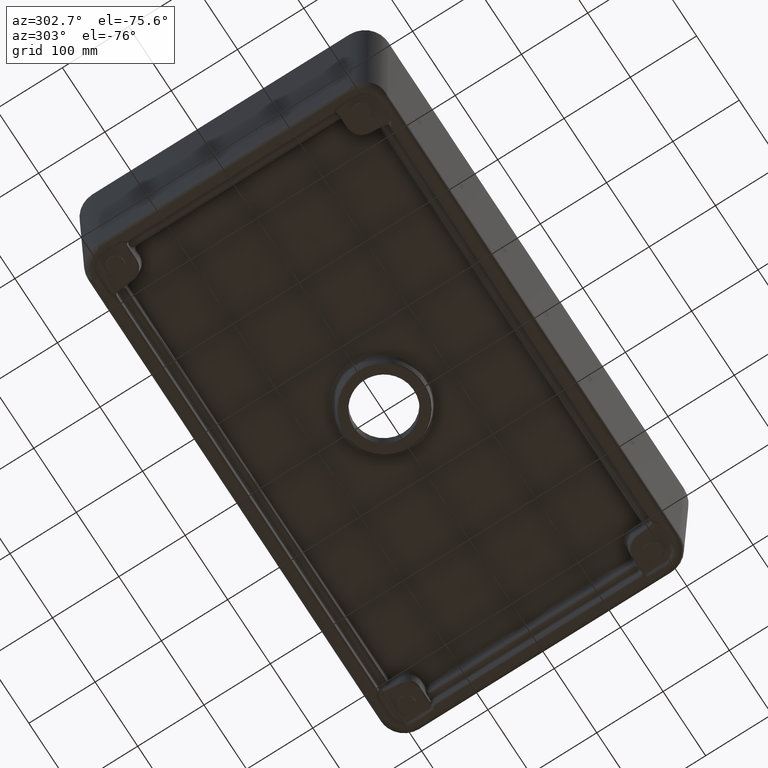
[diagram: clean part render]
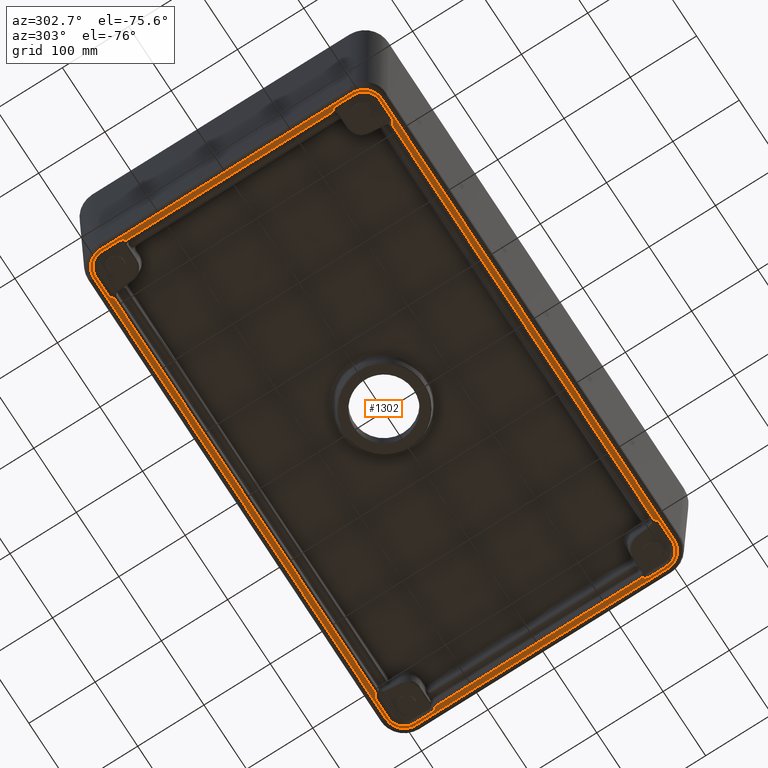
[diagram: same view with one face highlighted and labeled with its STEP entity id]
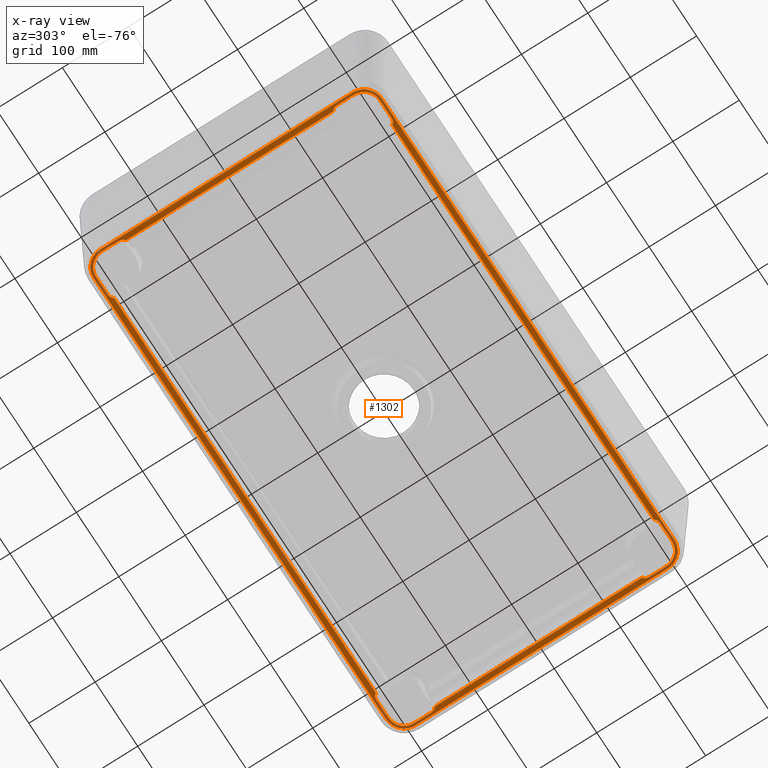
[diagram: x-ray of the same camera — body ghosted, the highlighted face saturated]
A machine part, auxiliary view. The second image highlights one B-rep face of the part: STEP entity #1302.
The next image is the same camera in x-ray: the body ghosted, the highlighted face saturated — about 0% of this face is hidden behind the body in this view.
In plain terms, the highlighted planar face has unit normal (0, 0, 1).
Its self-contained STEP definition (entity closure, byte-faithful):
#396=B_SPLINE_CURVE_WITH_KNOTS('',3,(#6875,#6876,#6877,#6878),
 .UNSPECIFIED.,.F.,.F.,(4,4),(0.,1.),.UNSPECIFIED.);
#397=B_SPLINE_CURVE_WITH_KNOTS('',3,(#6880,#6881,#6882,#6883,#6884,#6885,
#6886),.UNSPECIFIED.,.F.,.F.,(4,3,4),(0.,0.381640010981929,1.),
 .UNSPECIFIED.);
#398=B_SPLINE_CURVE_WITH_KNOTS('',3,(#6888,#6889,#6890,#6891,#6892,#6893,
#6894),.UNSPECIFIED.,.F.,.F.,(4,3,4),(0.,0.779110191904271,1.),
 .UNSPECIFIED.);
#399=B_SPLINE_CURVE_WITH_KNOTS('',3,(#6896,#6897,#6898,#6899),
 .UNSPECIFIED.,.F.,.F.,(4,4),(0.,1.),.UNSPECIFIED.);
#400=B_SPLINE_CURVE_WITH_KNOTS('',3,(#6901,#6902,#6903,#6904,#6905,#6906,
#6907,#6908,#6909,#6910,#6911,#6912,#6913,#6914,#6915,#6916,#6917,#6918),
 .UNSPECIFIED.,.F.,.F.,(4,2,2,2,2,2,2,2,4),(0.,0.249999999999995,0.312499999999995,
0.374999999999995,0.499999999999996,0.624999999999997,0.687499999999998,
0.749999999999998,1.),.UNSPECIFIED.);
#401=B_SPLINE_CURVE_WITH_KNOTS('',3,(#6920,#6921,#6922,#6923),
 .UNSPECIFIED.,.F.,.F.,(4,4),(0.,1.),.UNSPECIFIED.);
#402=B_SPLINE_CURVE_WITH_KNOTS('',3,(#6925,#6926,#6927,#6928,#6929,#6930,
#6931),.UNSPECIFIED.,.F.,.F.,(4,3,4),(0.,0.633120968215897,1.),
 .UNSPECIFIED.);
#403=B_SPLINE_CURVE_WITH_KNOTS('',3,(#6933,#6934,#6935,#6936,#6937,#6938,
#6939,#6940,#6941,#6942),.UNSPECIFIED.,.F.,.F.,(4,3,3,4),(0.,0.457853076819041,
0.791754988975363,1.),.UNSPECIFIED.);
#404=B_SPLINE_CURVE_WITH_KNOTS('',3,(#6944,#6945,#6946,#6947),
 .UNSPECIFIED.,.F.,.F.,(4,4),(0.,1.),.UNSPECIFIED.);
#405=B_SPLINE_CURVE_WITH_KNOTS('',3,(#6951,#6952,#6953,#6954),
 .UNSPECIFIED.,.F.,.F.,(4,4),(0.,1.),.UNSPECIFIED.);
#406=B_SPLINE_CURVE_WITH_KNOTS('',3,(#6956,#6957,#6958,#6959,#6960,#6961,
#6962,#6963,#6964,#6965),.UNSPECIFIED.,.F.,.F.,(4,3,3,4),(0.,0.0612235893492684,
0.385989758819238,1.),.UNSPECIFIED.);
#407=B_SPLINE_CURVE_WITH_KNOTS('',3,(#6967,#6968,#6969,#6970),
 .UNSPECIFIED.,.F.,.F.,(4,4),(0.,1.),.UNSPECIFIED.);
#408=B_SPLINE_CURVE_WITH_KNOTS('',3,(#6972,#6973,#6974,#6975),
 .UNSPECIFIED.,.F.,.F.,(4,4),(0.,1.),.UNSPECIFIED.);
#409=B_SPLINE_CURVE_WITH_KNOTS('',3,(#6977,#6978,#6979,#6980,#6981,#6982,
#6983,#6984,#6985,#6986,#6987,#6988,#6989,#6990,#6991,#6992,#6993,#6994),
 .UNSPECIFIED.,.F.,.F.,(4,2,2,2,2,2,2,2,4),(0.,0.249999999999996,0.312499999999995,
0.374999999999994,0.499999999999993,0.624999999999992,0.687499999999992,
0.749999999999993,1.),.UNSPECIFIED.);
#410=B_SPLINE_CURVE_WITH_KNOTS('',3,(#6996,#6997,#6998,#6999),
 .UNSPECIFIED.,.F.,.F.,(4,4),(0.,1.),.UNSPECIFIED.);
#411=B_SPLINE_CURVE_WITH_KNOTS('',3,(#7001,#7002,#7003,#7004),
 .UNSPECIFIED.,.F.,.F.,(4,4),(0.,1.),.UNSPECIFIED.);
#412=B_SPLINE_CURVE_WITH_KNOTS('',3,(#7006,#7007,#7008,#7009,#7010,#7011,
#7012,#7013,#7014,#7015),.UNSPECIFIED.,.F.,.F.,(4,3,3,4),(0.,0.637214308742445,
0.934135097132721,1.),.UNSPECIFIED.);
#413=B_SPLINE_CURVE_WITH_KNOTS('',3,(#7017,#7018,#7019,#7020),
 .UNSPECIFIED.,.F.,.F.,(4,4),(0.,1.),.UNSPECIFIED.);
#414=B_SPLINE_CURVE_WITH_KNOTS('',3,(#7024,#7025,#7026,#7027),
 .UNSPECIFIED.,.F.,.F.,(4,4),(0.,1.),.UNSPECIFIED.);
#415=B_SPLINE_CURVE_WITH_KNOTS('',3,(#7029,#7030,#7031,#7032,#7033,#7034,
#7035,#7036,#7037,#7038),.UNSPECIFIED.,.F.,.F.,(4,3,3,4),(0.,0.637214308742445,
0.934135097132721,1.),.UNSPECIFIED.);
#416=B_SPLINE_CURVE_WITH_KNOTS('',3,(#7040,#7041,#7042,#7043),
 .UNSPECIFIED.,.F.,.F.,(4,4),(0.,1.),.UNSPECIFIED.);
#417=B_SPLINE_CURVE_WITH_KNOTS('',3,(#7045,#7046,#7047,#7048),
 .UNSPECIFIED.,.F.,.F.,(4,4),(0.,1.),.UNSPECIFIED.);
#418=B_SPLINE_CURVE_WITH_KNOTS('',3,(#7050,#7051,#7052,#7053,#7054,#7055,
#7056,#7057,#7058,#7059,#7060,#7061,#7062,#7063,#7064,#7065,#7066,#7067),
 .UNSPECIFIED.,.F.,.F.,(4,2,2,2,2,2,2,2,4),(0.,0.249999999999996,0.312499999999995,
0.374999999999994,0.499999999999993,0.624999999999992,0.687499999999992,
0.749999999999993,1.),.UNSPECIFIED.);
#419=B_SPLINE_CURVE_WITH_KNOTS('',3,(#7069,#7070,#7071,#7072),
 .UNSPECIFIED.,.F.,.F.,(4,4),(0.,1.),.UNSPECIFIED.);
#420=B_SPLINE_CURVE_WITH_KNOTS('',3,(#7074,#7075,#7076,#7077),
 .UNSPECIFIED.,.F.,.F.,(4,4),(0.,1.),.UNSPECIFIED.);
#421=B_SPLINE_CURVE_WITH_KNOTS('',3,(#7079,#7080,#7081,#7082,#7083,#7084,
#7085,#7086,#7087,#7088),.UNSPECIFIED.,.F.,.F.,(4,3,3,4),(0.,0.061223589349268,
0.385989758819238,1.),.UNSPECIFIED.);
#422=B_SPLINE_CURVE_WITH_KNOTS('',3,(#7090,#7091,#7092,#7093),
 .UNSPECIFIED.,.F.,.F.,(4,4),(0.,1.),.UNSPECIFIED.);
#423=B_SPLINE_CURVE_WITH_KNOTS('',3,(#7097,#7098,#7099,#7100),
 .UNSPECIFIED.,.F.,.F.,(4,4),(0.,1.),.UNSPECIFIED.);
#424=B_SPLINE_CURVE_WITH_KNOTS('',3,(#7102,#7103,#7104,#7105,#7106,#7107,
#7108,#7109,#7110,#7111),.UNSPECIFIED.,.F.,.F.,(4,3,3,4),(0.,0.457853076819041,
0.791754988975362,1.),.UNSPECIFIED.);
#425=B_SPLINE_CURVE_WITH_KNOTS('',3,(#7113,#7114,#7115,#7116,#7117,#7118,
#7119),.UNSPECIFIED.,.F.,.F.,(4,3,4),(0.,0.633120968215898,1.),
 .UNSPECIFIED.);
#426=B_SPLINE_CURVE_WITH_KNOTS('',3,(#7121,#7122,#7123,#7124),
 .UNSPECIFIED.,.F.,.F.,(4,4),(0.,1.),.UNSPECIFIED.);
#427=B_SPLINE_CURVE_WITH_KNOTS('',3,(#7126,#7127,#7128,#7129,#7130,#7131,
#7132,#7133,#7134,#7135,#7136,#7137,#7138,#7139,#7140,#7141,#7142,#7143),
 .UNSPECIFIED.,.F.,.F.,(4,2,2,2,2,2,2,2,4),(0.,0.249999999999995,0.312499999999995,
0.374999999999995,0.499999999999996,0.624999999999997,0.687499999999998,
0.749999999999998,1.),.UNSPECIFIED.);
#428=B_SPLINE_CURVE_WITH_KNOTS('',3,(#7145,#7146,#7147,#7148),
 .UNSPECIFIED.,.F.,.F.,(4,4),(0.,1.),.UNSPECIFIED.);
#429=B_SPLINE_CURVE_WITH_KNOTS('',3,(#7150,#7151,#7152,#7153,#7154,#7155,
#7156),.UNSPECIFIED.,.F.,.F.,(4,3,4),(0.,0.779110191904271,1.),
 .UNSPECIFIED.);
#430=B_SPLINE_CURVE_WITH_KNOTS('',3,(#7158,#7159,#7160,#7161,#7162,#7163,
#7164),.UNSPECIFIED.,.F.,.F.,(4,3,4),(0.,0.381640010981929,1.),
 .UNSPECIFIED.);
#431=B_SPLINE_CURVE_WITH_KNOTS('',3,(#7166,#7167,#7168,#7169),
 .UNSPECIFIED.,.F.,.F.,(4,4),(0.,1.),.UNSPECIFIED.);
#980=FACE_BOUND('',#2016,.T.);
#981=FACE_BOUND('',#2017,.T.);
#1006=ELLIPSE('',#5809,27.1439448121189,27.1356783919598);
#1007=ELLIPSE('',#5810,27.1439448121189,27.1356783919598);
#1008=ELLIPSE('',#5811,27.1439448121189,27.1356783919598);
#1009=ELLIPSE('',#5812,27.1439448121189,27.1356783919598);
#1302=ADVANCED_FACE('',(#980,#981),#1651,.F.);
#1651=PLANE('',#5813);
#2016=EDGE_LOOP('',(#2392,#2393,#2394,#2395,#2396,#2397,#2398,#2399));
#2017=EDGE_LOOP('',(#2400,#2401,#2402,#2403,#2404,#2405,#2406,#2407,#2408,
#2409,#2410,#2411,#2412,#2413,#2414,#2415,#2416,#2417,#2418,#2419,#2420,
#2421,#2422,#2423,#2424,#2425,#2426,#2427,#2428,#2429,#2430,#2431,#2432,
#2433,#2434,#2435,#2436,#2437,#2438,#2439));
#2392=ORIENTED_EDGE('',*,*,#4771,.T.);
#2393=ORIENTED_EDGE('',*,*,#4776,.F.);
#2394=ORIENTED_EDGE('',*,*,#4777,.F.);
#2395=ORIENTED_EDGE('',*,*,#4778,.F.);
#2396=ORIENTED_EDGE('',*,*,#4773,.T.);
#2397=ORIENTED_EDGE('',*,*,#4779,.T.);
#2398=ORIENTED_EDGE('',*,*,#4780,.T.);
#2399=ORIENTED_EDGE('',*,*,#4781,.T.);
#2400=ORIENTED_EDGE('',*,*,#4782,.T.);
#2401=ORIENTED_EDGE('',*,*,#4783,.F.);
#2402=ORIENTED_EDGE('',*,*,#4784,.F.);
#2403=ORIENTED_EDGE('',*,*,#4785,.F.);
#2404=ORIENTED_EDGE('',*,*,#4786,.F.);
#2405=ORIENTED_EDGE('',*,*,#4787,.F.);
#2406=ORIENTED_EDGE('',*,*,#4788,.F.);
#2407=ORIENTED_EDGE('',*,*,#4789,.F.);
#2408=ORIENTED_EDGE('',*,*,#4790,.F.);
#2409=ORIENTED_EDGE('',*,*,#4791,.F.);
#2410=ORIENTED_EDGE('',*,*,#4792,.F.);
#2411=ORIENTED_EDGE('',*,*,#4793,.F.);
#2412=ORIENTED_EDGE('',*,*,#4794,.F.);
#2413=ORIENTED_EDGE('',*,*,#4795,.F.);
#2414=ORIENTED_EDGE('',*,*,#4796,.F.);
#2415=ORIENTED_EDGE('',*,*,#4797,.F.);
#2416=ORIENTED_EDGE('',*,*,#4798,.F.);
#2417=ORIENTED_EDGE('',*,*,#4799,.F.);
#2418=ORIENTED_EDGE('',*,*,#4800,.F.);
#2419=ORIENTED_EDGE('',*,*,#4801,.F.);
#2420=ORIENTED_EDGE('',*,*,#4802,.T.);
#2421=ORIENTED_EDGE('',*,*,#4803,.T.);
#2422=ORIENTED_EDGE('',*,*,#4804,.T.);
#2423=ORIENTED_EDGE('',*,*,#4805,.T.);
#2424=ORIENTED_EDGE('',*,*,#4806,.T.);
#2425=ORIENTED_EDGE('',*,*,#4807,.T.);
#2426=ORIENTED_EDGE('',*,*,#4808,.T.);
#2427=ORIENTED_EDGE('',*,*,#4809,.T.);
#2428=ORIENTED_EDGE('',*,*,#4810,.T.);
#2429=ORIENTED_EDGE('',*,*,#4811,.T.);
#2430=ORIENTED_EDGE('',*,*,#4812,.T.);
#2431=ORIENTED_EDGE('',*,*,#4813,.T.);
#2432=ORIENTED_EDGE('',*,*,#4814,.T.);
#2433=ORIENTED_EDGE('',*,*,#4815,.T.);
#2434=ORIENTED_EDGE('',*,*,#4816,.T.);
#2435=ORIENTED_EDGE('',*,*,#4817,.T.);
#2436=ORIENTED_EDGE('',*,*,#4818,.T.);
#2437=ORIENTED_EDGE('',*,*,#4819,.T.);
#2438=ORIENTED_EDGE('',*,*,#4820,.T.);
#2439=ORIENTED_EDGE('',*,*,#4821,.T.);
#4200=VERTEX_POINT('',#6851);
#4201=VERTEX_POINT('',#6853);
#4202=VERTEX_POINT('',#6857);
#4203=VERTEX_POINT('',#6858);
#4204=VERTEX_POINT('',#6863);
#4205=VERTEX_POINT('',#6865);
#4206=VERTEX_POINT('',#6868);
#4207=VERTEX_POINT('',#6870);
#4208=VERTEX_POINT('',#6873);
#4209=VERTEX_POINT('',#6874);
#4210=VERTEX_POINT('',#6879);
#4211=VERTEX_POINT('',#6887);
#4212=VERTEX_POINT('',#6895);
#4213=VERTEX_POINT('',#6900);
#4214=VERTEX_POINT('',#6919);
#4215=VERTEX_POINT('',#6924);
#4216=VERTEX_POINT('',#6932);
#4217=VERTEX_POINT('',#6943);
#4218=VERTEX_POINT('',#6948);
#4219=VERTEX_POINT('',#6950);
#4220=VERTEX_POINT('',#6955);
#4221=VERTEX_POINT('',#6966);
#4222=VERTEX_POINT('',#6971);
#4223=VERTEX_POINT('',#6976);
#4224=VERTEX_POINT('',#6995);
#4225=VERTEX_POINT('',#7000);
#4226=VERTEX_POINT('',#7005);
#4227=VERTEX_POINT('',#7016);
#4228=VERTEX_POINT('',#7021);
#4229=VERTEX_POINT('',#7023);
#4230=VERTEX_POINT('',#7028);
#4231=VERTEX_POINT('',#7039);
#4232=VERTEX_POINT('',#7044);
#4233=VERTEX_POINT('',#7049);
#4234=VERTEX_POINT('',#7068);
#4235=VERTEX_POINT('',#7073);
#4236=VERTEX_POINT('',#7078);
#4237=VERTEX_POINT('',#7089);
#4238=VERTEX_POINT('',#7094);
#4239=VERTEX_POINT('',#7096);
#4240=VERTEX_POINT('',#7101);
#4241=VERTEX_POINT('',#7112);
#4242=VERTEX_POINT('',#7120);
#4243=VERTEX_POINT('',#7125);
#4244=VERTEX_POINT('',#7144);
#4245=VERTEX_POINT('',#7149);
#4246=VERTEX_POINT('',#7157);
#4247=VERTEX_POINT('',#7165);
#4771=EDGE_CURVE('',#4201,#4200,#5678,.T.);
#4773=EDGE_CURVE('',#4202,#4203,#5679,.T.);
#4776=EDGE_CURVE('',#4204,#4200,#1006,.T.);
#4777=EDGE_CURVE('',#4205,#4204,#5680,.T.);
#4778=EDGE_CURVE('',#4202,#4205,#1007,.T.);
#4779=EDGE_CURVE('',#4203,#4206,#1008,.T.);
#4780=EDGE_CURVE('',#4206,#4207,#5681,.T.);
#4781=EDGE_CURVE('',#4207,#4201,#1009,.T.);
#4782=EDGE_CURVE('',#4208,#4209,#5682,.T.);
#4783=EDGE_CURVE('',#4210,#4209,#396,.T.);
#4784=EDGE_CURVE('',#4211,#4210,#397,.T.);
#4785=EDGE_CURVE('',#4212,#4211,#398,.T.);
#4786=EDGE_CURVE('',#4213,#4212,#399,.T.);
#4787=EDGE_CURVE('',#4214,#4213,#400,.T.);
#4788=EDGE_CURVE('',#4215,#4214,#401,.T.);
#4789=EDGE_CURVE('',#4216,#4215,#402,.T.);
#4790=EDGE_CURVE('',#4217,#4216,#403,.T.);
#4791=EDGE_CURVE('',#4218,#4217,#404,.T.);
#4792=EDGE_CURVE('',#4219,#4218,#5683,.T.);
#4793=EDGE_CURVE('',#4220,#4219,#405,.T.);
#4794=EDGE_CURVE('',#4221,#4220,#406,.T.);
#4795=EDGE_CURVE('',#4222,#4221,#407,.T.);
#4796=EDGE_CURVE('',#4223,#4222,#408,.T.);
#4797=EDGE_CURVE('',#4224,#4223,#409,.T.);
#4798=EDGE_CURVE('',#4225,#4224,#410,.T.);
#4799=EDGE_CURVE('',#4226,#4225,#411,.T.);
#4800=EDGE_CURVE('',#4227,#4226,#412,.T.);
#4801=EDGE_CURVE('',#4228,#4227,#413,.T.);
#4802=EDGE_CURVE('',#4228,#4229,#5684,.T.);
#4803=EDGE_CURVE('',#4229,#4230,#414,.T.);
#4804=EDGE_CURVE('',#4230,#4231,#415,.T.);
#4805=EDGE_CURVE('',#4231,#4232,#416,.T.);
#4806=EDGE_CURVE('',#4232,#4233,#417,.T.);
#4807=EDGE_CURVE('',#4233,#4234,#418,.T.);
#4808=EDGE_CURVE('',#4234,#4235,#419,.T.);
#4809=EDGE_CURVE('',#4235,#4236,#420,.T.);
#4810=EDGE_CURVE('',#4236,#4237,#421,.T.);
#4811=EDGE_CURVE('',#4237,#4238,#422,.T.);
#4812=EDGE_CURVE('',#4238,#4239,#5685,.T.);
#4813=EDGE_CURVE('',#4239,#4240,#423,.T.);
#4814=EDGE_CURVE('',#4240,#4241,#424,.T.);
#4815=EDGE_CURVE('',#4241,#4242,#425,.T.);
#4816=EDGE_CURVE('',#4242,#4243,#426,.T.);
#4817=EDGE_CURVE('',#4243,#4244,#427,.T.);
#4818=EDGE_CURVE('',#4244,#4245,#428,.T.);
#4819=EDGE_CURVE('',#4245,#4246,#429,.T.);
#4820=EDGE_CURVE('',#4246,#4247,#430,.T.);
#4821=EDGE_CURVE('',#4247,#4208,#431,.T.);
#5678=LINE('',#6852,#5743);
#5679=LINE('',#6856,#5744);
#5680=LINE('',#6864,#5745);
#5681=LINE('',#6869,#5746);
#5682=LINE('',#6872,#5747);
#5683=LINE('',#6949,#5748);
#5684=LINE('',#7022,#5749);
#5685=LINE('',#7095,#5750);
#5743=VECTOR('',#6138,1.);
#5744=VECTOR('',#6143,1.);
#5745=VECTOR('',#6152,1.);
#5746=VECTOR('',#6157,1.);
#5747=VECTOR('',#6160,1.);
#5748=VECTOR('',#6161,1.);
#5749=VECTOR('',#6162,1.);
#5750=VECTOR('',#6163,1.);
#5809=AXIS2_PLACEMENT_3D('',#6862,#6150,#6151);
#5810=AXIS2_PLACEMENT_3D('',#6866,#6153,#6154);
#5811=AXIS2_PLACEMENT_3D('',#6867,#6155,#6156);
#5812=AXIS2_PLACEMENT_3D('',#6871,#6158,#6159);
#5813=AXIS2_PLACEMENT_3D('',#7170,#6164,#6165);
#6138=DIRECTION('',(0.,-1.,0.));
#6143=DIRECTION('',(0.,1.,0.));
#6150=DIRECTION('',(0.,0.,1.));
#6151=DIRECTION('',(0.707106781186548,-0.707106781186548,0.));
#6152=DIRECTION('',(1.,0.,0.));
#6153=DIRECTION('',(0.,0.,1.));
#6154=DIRECTION('',(-0.707106781186548,-0.707106781186548,0.));
#6155=DIRECTION('',(0.,0.,-1.));
#6156=DIRECTION('',(-0.707106781186548,0.707106781186548,0.));
#6157=DIRECTION('',(1.,0.,0.));
#6158=DIRECTION('',(0.,0.,-1.));
#6159=DIRECTION('',(0.707106781186548,0.707106781186548,0.));
#6160=DIRECTION('',(1.10930001209168E-015,-1.,0.));
#6161=DIRECTION('',(-1.,0.,0.));
#6162=DIRECTION('',(3.46656253778651E-017,1.,0.));
#6163=DIRECTION('',(-1.,0.,0.));
#6164=DIRECTION('',(0.,0.,1.));
#6165=DIRECTION('',(-1.,0.,0.));
#6851=CARTESIAN_POINT('',(370.557623520912,-190.260248878477,-38.9249710355113));
#6852=CARTESIAN_POINT('',(370.557623520912,-190.122355957547,-38.9249710355113));
#6853=CARTESIAN_POINT('',(370.557623520912,190.260248878477,-38.9249710355113));
#6856=CARTESIAN_POINT('',(-370.557623520912,190.122355957547,-38.9249710355113));
#6857=CARTESIAN_POINT('',(-370.557623520912,-190.260248878477,-38.9249710355113));
#6858=CARTESIAN_POINT('',(-370.557623520912,190.260248878477,-38.9249710355113));
#6862=CARTESIAN_POINT('',(343.417811604142,-190.251982458414,-38.9249710355112));
#6863=CARTESIAN_POINT('',(343.426078024206,-217.391794375183,-38.9249710355113));
#6864=CARTESIAN_POINT('',(343.288185103275,-217.391794375183,-38.9249710355113));
#6865=CARTESIAN_POINT('',(-343.426078024206,-217.391794375183,-38.9249710355113));
#6866=CARTESIAN_POINT('',(-343.417811604142,-190.251982458414,-38.9249710355112));
#6867=CARTESIAN_POINT('',(-343.417811604142,190.251982458414,-38.9249710355112));
#6868=CARTESIAN_POINT('',(-343.426078024206,217.391794375183,-38.9249710355113));
#6869=CARTESIAN_POINT('',(343.288185103275,217.391794375183,-38.9249710355113));
#6870=CARTESIAN_POINT('',(343.426078024206,217.391794375183,-38.9249710355113));
#6871=CARTESIAN_POINT('',(343.417811604142,190.251982458414,-38.9249710355112));
#6872=CARTESIAN_POINT('',(-363.066168233185,-155.43502953761,-38.9249710355113));
#6873=CARTESIAN_POINT('',(-363.066168233185,154.900490997449,-38.9249710355113));
#6874=CARTESIAN_POINT('',(-363.066168233185,-154.900490997449,-38.9249710355113));
#6875=CARTESIAN_POINT('',(-363.1846975913,-155.671191566404,-38.9249710355113));
#6876=CARTESIAN_POINT('',(-363.10671135873,-155.423246253552,-38.9249710355113));
#6877=CARTESIAN_POINT('',(-363.066168233185,-155.16041162117,-38.9249710355113));
#6878=CARTESIAN_POINT('',(-363.066168233185,-154.900490997449,-38.9249710355113));
#6879=CARTESIAN_POINT('',(-363.1846975913,-155.671191566404,-38.9249710355113));
#6880=CARTESIAN_POINT('',(-363.586157042633,-156.694139198891,-38.9249710355113));
#6881=CARTESIAN_POINT('',(-363.501529292025,-156.58284976847,-38.9249710355113));
#6882=CARTESIAN_POINT('',(-363.45165565011,-156.44803323705,-38.9249710355113));
#6883=CARTESIAN_POINT('',(-363.401617872742,-156.317482808738,-38.9249710355113));
#6884=CARTESIAN_POINT('',(-363.320289376231,-156.105293726571,-38.9249710355113));
#6885=CARTESIAN_POINT('',(-363.252878712601,-155.887963025857,-38.9249710355113));
#6886=CARTESIAN_POINT('',(-363.1846975913,-155.671191566404,-38.9249710355113));
#6887=CARTESIAN_POINT('',(-363.586157042633,-156.694139198891,-38.9249710355113));
#6888=CARTESIAN_POINT('',(-364.033419782479,-157.160045070747,-38.9249710355113));
#6889=CARTESIAN_POINT('',(-363.904080419004,-157.053171594618,-38.9249710355113));
#6890=CARTESIAN_POINT('',(-363.783920072641,-156.934149144474,-38.9249710355113));
#6891=CARTESIAN_POINT('',(-363.675719783307,-156.80591768097,-38.9249710355113));
#6892=CARTESIAN_POINT('',(-363.644929854392,-156.769427596975,-38.9249710355113));
#6893=CARTESIAN_POINT('',(-363.615056837975,-156.732143774692,-38.9249710355113));
#6894=CARTESIAN_POINT('',(-363.586157042633,-156.694139198891,-38.9249710355113));
#6895=CARTESIAN_POINT('',(-364.033419782479,-157.160045070747,-38.9249710355113));
#6896=CARTESIAN_POINT('',(-367.275784585555,-164.04901139435,-38.9249710355113));
#6897=CARTESIAN_POINT('',(-367.275785478975,-161.405861538318,-38.9249710355113));
#6898=CARTESIAN_POINT('',(-366.071021455255,-158.843721005779,-38.9249710355113));
#6899=CARTESIAN_POINT('',(-364.033419782479,-157.160045070747,-38.9249710355113));
#6900=CARTESIAN_POINT('',(-367.275784585555,-164.04901139435,-38.9249710355113));
#6901=CARTESIAN_POINT('',(-315.124508112416,-214.109957470588,-38.9249710355113));
#6902=CARTESIAN_POINT('',(-322.7095148196,-214.109954539535,-38.9249710355113));
#6903=CARTESIAN_POINT('',(-330.294598787995,-214.113315692453,-38.9249710355113));
#6904=CARTESIAN_POINT('',(-339.77556476338,-214.100580063081,-38.9249710355113));
#6905=CARTESIAN_POINT('',(-341.671976795916,-214.107561490878,-38.9249710355113));
#6906=CARTESIAN_POINT('',(-345.464503472545,-214.108575549882,-38.9249710355113));
#6907=CARTESIAN_POINT('',(-347.371122570532,-213.848739409289,-38.9249710355113));
#6908=CARTESIAN_POINT('',(-352.96735275476,-212.405068340496,-38.9249710355113));
#6909=CARTESIAN_POINT('',(-356.438570979766,-210.547544997536,-38.9249710355113));
#6910=CARTESIAN_POINT('',(-362.128713088513,-205.47308614114,-38.9249710355113));
#6911=CARTESIAN_POINT('',(-364.351528879016,-202.222465231722,-38.9249710355113));
#6912=CARTESIAN_POINT('',(-366.407833750265,-196.816714077835,-38.9249710355113));
#6913=CARTESIAN_POINT('',(-366.873491351789,-194.949065427098,-38.9249710355113));
#6914=CARTESIAN_POINT('',(-367.338194998888,-191.158898021872,-38.9249710355113));
#6915=CARTESIAN_POINT('',(-367.268744298041,-189.212402916788,-38.9249710355113));
#6916=CARTESIAN_POINT('',(-367.283753077819,-179.53417661485,-38.9249710355113));
#6917=CARTESIAN_POINT('',(-367.275781968457,-171.7915936135,-38.9249710355113));
#6918=CARTESIAN_POINT('',(-367.275784585555,-164.04901139435,-38.9249710355113));
#6919=CARTESIAN_POINT('',(-315.124508112416,-214.109957470588,-38.9249710355113));
#6920=CARTESIAN_POINT('',(-308.234732070418,-210.863897440515,-38.9249710355113));
#6921=CARTESIAN_POINT('',(-309.917608091989,-212.903427565152,-38.9249710355113));
#6922=CARTESIAN_POINT('',(-312.480357104722,-214.10995849236,-38.9249710355113));
#6923=CARTESIAN_POINT('',(-315.124508112416,-214.109957470588,-38.9249710355113));
#6924=CARTESIAN_POINT('',(-308.234732070418,-210.863897440514,-38.9249710355113));
#6925=CARTESIAN_POINT('',(-307.852519889821,-210.482573502364,-38.9249710355113));
#6926=CARTESIAN_POINT('',(-307.940611569403,-210.554953141965,-38.9249710355113));
#6927=CARTESIAN_POINT('',(-308.024445548226,-210.632849189387,-38.9249710355113));
#6928=CARTESIAN_POINT('',(-308.103069586763,-210.715415628116,-38.9249710355113));
#6929=CARTESIAN_POINT('',(-308.148686716345,-210.763320111336,-38.9249710355113));
#6930=CARTESIAN_POINT('',(-308.192631704146,-210.812874688886,-38.9249710355113));
#6931=CARTESIAN_POINT('',(-308.234732070418,-210.863897440514,-38.9249710355113));
#6932=CARTESIAN_POINT('',(-307.852519889821,-210.482573502364,-38.9249710355113));
#6933=CARTESIAN_POINT('',(-306.841639597909,-210.045615034379,-38.9249710355113));
#6934=CARTESIAN_POINT('',(-307.000731019468,-210.101538049265,-38.9249710355113));
#6935=CARTESIAN_POINT('',(-307.159836892276,-210.157578611039,-38.9249710355113));
#6936=CARTESIAN_POINT('',(-307.317123808524,-210.218392178478,-38.9249710355113));
#6937=CARTESIAN_POINT('',(-307.431774816997,-210.262720956752,-38.9249710355113));
#6938=CARTESIAN_POINT('',(-307.545842829983,-210.309308976052,-38.9249710355113));
#6939=CARTESIAN_POINT('',(-307.655917297216,-210.364021917761,-38.9249710355113));
#6940=CARTESIAN_POINT('',(-307.724445447598,-210.398084101221,-38.9249710355113));
#6941=CARTESIAN_POINT('',(-307.793391809249,-210.43399151162,-38.9249710355113));
#6942=CARTESIAN_POINT('',(-307.852519889821,-210.482573502364,-38.9249710355113));
#6943=CARTESIAN_POINT('',(-306.841639597909,-210.045615034379,-38.9249710355113));
#6944=CARTESIAN_POINT('',(-305.991646598121,-209.900339087456,-38.9249710355113));
#6945=CARTESIAN_POINT('',(-306.279086099088,-209.900339087456,-38.9249710355113));
#6946=CARTESIAN_POINT('',(-306.570465764481,-209.950293374827,-38.9249710355113));
#6947=CARTESIAN_POINT('',(-306.841639597909,-210.045615034379,-38.9249710355113));
#6948=CARTESIAN_POINT('',(-305.991646598121,-209.900339087456,-38.9249710355113));
#6949=CARTESIAN_POINT('',(-306.494864110458,-209.900339087456,-38.9249710355113));
#6950=CARTESIAN_POINT('',(305.747874658885,-209.900339087456,-38.9249710355113));
#6951=CARTESIAN_POINT('',(306.766260736348,-210.073945156835,-38.9249710355113));
#6952=CARTESIAN_POINT('',(306.441289667339,-209.960028272485,-38.9249710355113));
#6953=CARTESIAN_POINT('',(306.092233849605,-209.900339087456,-38.9249710355113));
#6954=CARTESIAN_POINT('',(305.747874658885,-209.900339087456,-38.9249710355113));
#6955=CARTESIAN_POINT('',(306.766260736348,-210.073945156835,-38.9249710355113));
#6956=CARTESIAN_POINT('',(307.885556100203,-210.55648328172,-38.9249710355113));
#6957=CARTESIAN_POINT('',(307.865873051657,-210.541003227511,-38.9249710355113));
#6958=CARTESIAN_POINT('',(307.845270828044,-210.526673411725,-38.9249710355113));
#6959=CARTESIAN_POINT('',(307.824244452858,-210.513073925524,-38.9249710355113));
#6960=CARTESIAN_POINT('',(307.713275317009,-210.441301058428,-38.9249710355113));
#6961=CARTESIAN_POINT('',(307.591664235557,-210.386577251544,-38.9249710355113));
#6962=CARTESIAN_POINT('',(307.46984530221,-210.335336242182,-38.9249710355113));
#6963=CARTESIAN_POINT('',(307.239226465691,-210.238330451403,-38.9249710355113));
#6964=CARTESIAN_POINT('',(307.002364786097,-210.156710179001,-38.9249710355113));
#6965=CARTESIAN_POINT('',(306.766260736348,-210.073945156835,-38.9249710355113));
#6966=CARTESIAN_POINT('',(307.885556100203,-210.55648328172,-38.9249710355113));
#6967=CARTESIAN_POINT('',(308.350974693717,-211.001907932678,-38.9249710355113));
#6968=CARTESIAN_POINT('',(308.210982995909,-210.839072464329,-38.9249710355113));
#6969=CARTESIAN_POINT('',(308.054348047056,-210.689232458311,-38.9249710355113));
#6970=CARTESIAN_POINT('',(307.885556100203,-210.55648328172,-38.9249710355113));
#6971=CARTESIAN_POINT('',(308.350974693717,-211.001907932678,-38.9249710355113));
#6972=CARTESIAN_POINT('',(315.124508112417,-214.109957470588,-38.9249710355113));
#6973=CARTESIAN_POINT('',(312.541131914244,-214.109958468875,-38.9249710355113));
#6974=CARTESIAN_POINT('',(310.035145249458,-212.960900540933,-38.9249710355113));
#6975=CARTESIAN_POINT('',(308.350974693717,-211.001907932678,-38.9249710355113));
#6976=CARTESIAN_POINT('',(315.124508112417,-214.109957470588,-38.9249710355113));
#6977=CARTESIAN_POINT('',(367.275784585555,-164.04901139435,-38.9249710355113));
#6978=CARTESIAN_POINT('',(367.275782010071,-171.668479123413,-38.9249710355113));
#6979=CARTESIAN_POINT('',(367.285814598906,-179.288111106068,-38.9249710355113));
#6980=CARTESIAN_POINT('',(367.268999256826,-188.812170589886,-38.9249710355112));
#6981=CARTESIAN_POINT('',(367.351699681426,-190.718391156941,-38.9249710355113));
#6982=CARTESIAN_POINT('',(366.958098246084,-194.521682651833,-38.9249710355113));
#6983=CARTESIAN_POINT('',(366.519877869849,-196.413128200757,-38.9249710355113));
#6984=CARTESIAN_POINT('',(364.588186126643,-201.784324493241,-38.9249710355113));
#6985=CARTESIAN_POINT('',(362.451836198065,-205.07366040689,-38.9249710355113));
#6986=CARTESIAN_POINT('',(356.824076350645,-210.301961378198,-38.9249710355113));
#6987=CARTESIAN_POINT('',(353.380841396398,-212.212259773944,-38.9249710355113));
#6988=CARTESIAN_POINT('',(347.877051237512,-213.753452914185,-38.9249710355113));
#6989=CARTESIAN_POINT('',(345.988676187834,-214.049235072225,-38.9249710355113));
#6990=CARTESIAN_POINT('',(342.13074950994,-214.154981738086,-38.9249710355113));
#6991=CARTESIAN_POINT('',(340.20168287296,-214.100368642843,-38.9249710355113));
#6992=CARTESIAN_POINT('',(330.556622985031,-214.11168143139,-38.9249710355113));
#6993=CARTESIAN_POINT('',(322.840564717466,-214.109954488894,-38.9249710355113));
#6994=CARTESIAN_POINT('',(315.124508112416,-214.109957470588,-38.9249710355113));
#6995=CARTESIAN_POINT('',(367.275784585555,-164.04901139435,-38.9249710355113));
#6996=CARTESIAN_POINT('',(364.171461930714,-157.27648088429,-38.9249710355113));
#6997=CARTESIAN_POINT('',(366.12853894455,-158.961431925737,-38.9249710355113));
#6998=CARTESIAN_POINT('',(367.275785458451,-161.466579527711,-38.9249710355113));
#6999=CARTESIAN_POINT('',(367.275784585555,-164.04901139435,-38.9249710355113));
#7000=CARTESIAN_POINT('',(364.171461930714,-157.27648088429,-38.9249710355113));
#7001=CARTESIAN_POINT('',(363.6554315707,-156.717596539327,-38.9249710355113));
#7002=CARTESIAN_POINT('',(363.805117668233,-156.922260408295,-38.9249710355113));
#7003=CARTESIAN_POINT('',(363.979306210437,-157.111043868418,-38.9249710355113));
#7004=CARTESIAN_POINT('',(364.171461930714,-157.27648088429,-38.9249710355113));
#7005=CARTESIAN_POINT('',(363.6554315707,-156.717596539327,-38.9249710355113));
#7006=CARTESIAN_POINT('',(363.21036858339,-155.587706092741,-38.9249710355113));
#7007=CARTESIAN_POINT('',(363.288458089452,-155.83428899643,-38.9249710355113));
#7008=CARTESIAN_POINT('',(363.364827794043,-156.081849211845,-38.9249710355113));
#7009=CARTESIAN_POINT('',(363.45894466517,-156.322770597193,-38.9249710355113));
#7010=CARTESIAN_POINT('',(363.502759150841,-156.434927391822,-38.9249710355113));
#7011=CARTESIAN_POINT('',(363.54997329231,-156.546693808773,-38.9249710355113));
#7012=CARTESIAN_POINT('',(363.611413864866,-156.650250130551,-38.9249710355113));
#7013=CARTESIAN_POINT('',(363.625098184175,-156.673314658023,-38.9249710355113));
#7014=CARTESIAN_POINT('',(363.639599647909,-156.695949755659,-38.9249710355113));
#7015=CARTESIAN_POINT('',(363.6554315707,-156.717596539327,-38.9249710355113));
#7016=CARTESIAN_POINT('',(363.21036858339,-155.587706092741,-38.9249710355113));
#7017=CARTESIAN_POINT('',(363.066168233185,-154.656200962668,-38.9249710355113));
#7018=CARTESIAN_POINT('',(363.066168233185,-154.970401102061,-38.9249710355113));
#7019=CARTESIAN_POINT('',(363.115508735917,-155.288167552763,-38.9249710355113));
#7020=CARTESIAN_POINT('',(363.21036858339,-155.587706092741,-38.9249710355113));
#7021=CARTESIAN_POINT('',(363.066168233185,-154.656200962668,-38.9249710355113));
#7022=CARTESIAN_POINT('',(363.066168233185,155.201882964687,-38.9249710355113));
#7023=CARTESIAN_POINT('',(363.066168233185,154.656200962668,-38.9249710355113));
#7024=CARTESIAN_POINT('',(363.066168233185,154.656200962668,-38.9249710355113));
#7025=CARTESIAN_POINT('',(363.066168233185,154.970401102061,-38.9249710355113));
#7026=CARTESIAN_POINT('',(363.115508735917,155.288167552763,-38.9249710355113));
#7027=CARTESIAN_POINT('',(363.21036858339,155.587706092741,-38.9249710355113));
#7028=CARTESIAN_POINT('',(363.21036858339,155.587706092741,-38.9249710355113));
#7029=CARTESIAN_POINT('',(363.21036858339,155.587706092741,-38.9249710355113));
#7030=CARTESIAN_POINT('',(363.288458089452,155.83428899643,-38.9249710355113));
#7031=CARTESIAN_POINT('',(363.364827794043,156.081849211845,-38.9249710355113));
#7032=CARTESIAN_POINT('',(363.45894466517,156.322770597193,-38.9249710355113));
#7033=CARTESIAN_POINT('',(363.502759150841,156.434927391822,-38.9249710355113));
#7034=CARTESIAN_POINT('',(363.54997329231,156.546693808773,-38.9249710355113));
#7035=CARTESIAN_POINT('',(363.611413864866,156.650250130551,-38.9249710355113));
#7036=CARTESIAN_POINT('',(363.625098184175,156.673314658023,-38.9249710355113));
#7037=CARTESIAN_POINT('',(363.639599647909,156.695949755659,-38.9249710355113));
#7038=CARTESIAN_POINT('',(363.6554315707,156.717596539327,-38.9249710355113));
#7039=CARTESIAN_POINT('',(363.6554315707,156.717596539327,-38.9249710355113));
#7040=CARTESIAN_POINT('',(363.6554315707,156.717596539327,-38.9249710355113));
#7041=CARTESIAN_POINT('',(363.805117668233,156.922260408295,-38.9249710355113));
#7042=CARTESIAN_POINT('',(363.979306210437,157.111043868418,-38.9249710355113));
#7043=CARTESIAN_POINT('',(364.171461930714,157.27648088429,-38.9249710355113));
#7044=CARTESIAN_POINT('',(364.171461930714,157.27648088429,-38.9249710355113));
#7045=CARTESIAN_POINT('',(364.171461930714,157.27648088429,-38.9249710355113));
#7046=CARTESIAN_POINT('',(366.12853894455,158.961431925737,-38.9249710355113));
#7047=CARTESIAN_POINT('',(367.275785458451,161.466579527711,-38.9249710355113));
#7048=CARTESIAN_POINT('',(367.275784585555,164.04901139435,-38.9249710355113));
#7049=CARTESIAN_POINT('',(367.275784585555,164.04901139435,-38.9249710355113));
#7050=CARTESIAN_POINT('',(367.275784585555,164.04901139435,-38.9249710355113));
#7051=CARTESIAN_POINT('',(367.275782010071,171.668479123413,-38.9249710355113));
#7052=CARTESIAN_POINT('',(367.285814598906,179.288111106068,-38.9249710355113));
#7053=CARTESIAN_POINT('',(367.268999256826,188.812170589886,-38.9249710355112));
#7054=CARTESIAN_POINT('',(367.351699681426,190.718391156941,-38.9249710355113));
#7055=CARTESIAN_POINT('',(366.958098246084,194.521682651833,-38.9249710355113));
#7056=CARTESIAN_POINT('',(366.519877869849,196.413128200757,-38.9249710355113));
#7057=CARTESIAN_POINT('',(364.588186126643,201.784324493241,-38.9249710355113));
#7058=CARTESIAN_POINT('',(362.451836198065,205.07366040689,-38.9249710355113));
#7059=CARTESIAN_POINT('',(356.824076350645,210.301961378198,-38.9249710355113));
#7060=CARTESIAN_POINT('',(353.380841396398,212.212259773944,-38.9249710355113));
#7061=CARTESIAN_POINT('',(347.877051237512,213.753452914185,-38.9249710355113));
#7062=CARTESIAN_POINT('',(345.988676187834,214.049235072225,-38.9249710355113));
#7063=CARTESIAN_POINT('',(342.13074950994,214.154981738086,-38.9249710355113));
#7064=CARTESIAN_POINT('',(340.20168287296,214.100368642843,-38.9249710355113));
#7065=CARTESIAN_POINT('',(330.556622985031,214.11168143139,-38.9249710355113));
#7066=CARTESIAN_POINT('',(322.840564717466,214.109954488894,-38.9249710355113));
#7067=CARTESIAN_POINT('',(315.124508112416,214.109957470588,-38.9249710355113));
#7068=CARTESIAN_POINT('',(315.124508112417,214.109957470588,-38.9249710355113));
#7069=CARTESIAN_POINT('',(315.124508112417,214.109957470588,-38.9249710355113));
#7070=CARTESIAN_POINT('',(312.541131914244,214.109958468875,-38.9249710355113));
#7071=CARTESIAN_POINT('',(310.035145249458,212.960900540933,-38.9249710355113));
#7072=CARTESIAN_POINT('',(308.350974693717,211.001907932678,-38.9249710355113));
#7073=CARTESIAN_POINT('',(308.350974693717,211.001907932678,-38.9249710355113));
#7074=CARTESIAN_POINT('',(308.350974693717,211.001907932678,-38.9249710355113));
#7075=CARTESIAN_POINT('',(308.210982995909,210.839072464329,-38.9249710355113));
#7076=CARTESIAN_POINT('',(308.054348047056,210.689232458311,-38.9249710355113));
#7077=CARTESIAN_POINT('',(307.885556100203,210.55648328172,-38.9249710355113));
#7078=CARTESIAN_POINT('',(307.885556100203,210.55648328172,-38.9249710355113));
#7079=CARTESIAN_POINT('',(307.885556100203,210.55648328172,-38.9249710355113));
#7080=CARTESIAN_POINT('',(307.865873051657,210.541003227511,-38.9249710355113));
#7081=CARTESIAN_POINT('',(307.845270828044,210.526673411725,-38.9249710355113));
#7082=CARTESIAN_POINT('',(307.824244452858,210.513073925524,-38.9249710355113));
#7083=CARTESIAN_POINT('',(307.713275317009,210.441301058428,-38.9249710355113));
#7084=CARTESIAN_POINT('',(307.591664235557,210.386577251544,-38.9249710355113));
#7085=CARTESIAN_POINT('',(307.46984530221,210.335336242182,-38.9249710355113));
#7086=CARTESIAN_POINT('',(307.239226465691,210.238330451403,-38.9249710355113));
#7087=CARTESIAN_POINT('',(307.002364786097,210.156710179001,-38.9249710355113));
#7088=CARTESIAN_POINT('',(306.766260736348,210.073945156835,-38.9249710355113));
#7089=CARTESIAN_POINT('',(306.766260736348,210.073945156835,-38.9249710355113));
#7090=CARTESIAN_POINT('',(306.766260736348,210.073945156835,-38.9249710355113));
#7091=CARTESIAN_POINT('',(306.441289667339,209.960028272485,-38.9249710355113));
#7092=CARTESIAN_POINT('',(306.092233849605,209.900339087456,-38.9249710355113));
#7093=CARTESIAN_POINT('',(305.747874658885,209.900339087456,-38.9249710355113));
#7094=CARTESIAN_POINT('',(305.747874658885,209.900339087456,-38.9249710355113));
#7095=CARTESIAN_POINT('',(-306.494864110458,209.900339087456,-38.9249710355113));
#7096=CARTESIAN_POINT('',(-305.991646598121,209.900339087456,-38.9249710355113));
#7097=CARTESIAN_POINT('',(-305.991646598121,209.900339087456,-38.9249710355113));
#7098=CARTESIAN_POINT('',(-306.279086099088,209.900339087456,-38.9249710355113));
#7099=CARTESIAN_POINT('',(-306.570465764481,209.950293374827,-38.9249710355113));
#7100=CARTESIAN_POINT('',(-306.841639597909,210.045615034379,-38.9249710355113));
#7101=CARTESIAN_POINT('',(-306.841639597909,210.045615034379,-38.9249710355113));
#7102=CARTESIAN_POINT('',(-306.841639597909,210.045615034379,-38.9249710355113));
#7103=CARTESIAN_POINT('',(-307.000731019468,210.101538049265,-38.9249710355113));
#7104=CARTESIAN_POINT('',(-307.159836892276,210.157578611039,-38.9249710355113));
#7105=CARTESIAN_POINT('',(-307.317123808524,210.218392178478,-38.9249710355113));
#7106=CARTESIAN_POINT('',(-307.431774816997,210.262720956752,-38.9249710355113));
#7107=CARTESIAN_POINT('',(-307.545842829983,210.309308976052,-38.9249710355113));
#7108=CARTESIAN_POINT('',(-307.655917297216,210.364021917761,-38.9249710355113));
#7109=CARTESIAN_POINT('',(-307.724445447598,210.398084101221,-38.9249710355113));
#7110=CARTESIAN_POINT('',(-307.793391809249,210.43399151162,-38.9249710355113));
#7111=CARTESIAN_POINT('',(-307.852519889821,210.482573502364,-38.9249710355113));
#7112=CARTESIAN_POINT('',(-307.852519889821,210.482573502364,-38.9249710355113));
#7113=CARTESIAN_POINT('',(-307.852519889821,210.482573502364,-38.9249710355113));
#7114=CARTESIAN_POINT('',(-307.940611569403,210.554953141965,-38.9249710355113));
#7115=CARTESIAN_POINT('',(-308.024445548226,210.632849189387,-38.9249710355113));
#7116=CARTESIAN_POINT('',(-308.103069586763,210.715415628116,-38.9249710355113));
#7117=CARTESIAN_POINT('',(-308.148686716345,210.763320111336,-38.9249710355113));
#7118=CARTESIAN_POINT('',(-308.192631704146,210.812874688886,-38.9249710355113));
#7119=CARTESIAN_POINT('',(-308.234732070418,210.863897440514,-38.9249710355113));
#7120=CARTESIAN_POINT('',(-308.234732070418,210.863897440514,-38.9249710355113));
#7121=CARTESIAN_POINT('',(-308.234732070418,210.863897440515,-38.9249710355113));
#7122=CARTESIAN_POINT('',(-309.917608091989,212.903427565152,-38.9249710355113));
#7123=CARTESIAN_POINT('',(-312.480357104722,214.10995849236,-38.9249710355113));
#7124=CARTESIAN_POINT('',(-315.124508112416,214.109957470588,-38.9249710355113));
#7125=CARTESIAN_POINT('',(-315.124508112416,214.109957470588,-38.9249710355113));
#7126=CARTESIAN_POINT('',(-315.124508112416,214.109957470588,-38.9249710355113));
#7127=CARTESIAN_POINT('',(-322.7095148196,214.109954539535,-38.9249710355113));
#7128=CARTESIAN_POINT('',(-330.294598787995,214.113315692453,-38.9249710355113));
#7129=CARTESIAN_POINT('',(-339.77556476338,214.100580063081,-38.9249710355113));
#7130=CARTESIAN_POINT('',(-341.671976795916,214.107561490878,-38.9249710355113));
#7131=CARTESIAN_POINT('',(-345.464503472545,214.108575549882,-38.9249710355113));
#7132=CARTESIAN_POINT('',(-347.371122570532,213.848739409289,-38.9249710355113));
#7133=CARTESIAN_POINT('',(-352.96735275476,212.405068340496,-38.9249710355113));
#7134=CARTESIAN_POINT('',(-356.438570979766,210.547544997536,-38.9249710355113));
#7135=CARTESIAN_POINT('',(-362.128713088513,205.47308614114,-38.9249710355113));
#7136=CARTESIAN_POINT('',(-364.351528879016,202.222465231722,-38.9249710355113));
#7137=CARTESIAN_POINT('',(-366.407833750265,196.816714077835,-38.9249710355113));
#7138=CARTESIAN_POINT('',(-366.873491351789,194.949065427098,-38.9249710355113));
#7139=CARTESIAN_POINT('',(-367.338194998888,191.158898021872,-38.9249710355113));
#7140=CARTESIAN_POINT('',(-367.268744298041,189.212402916788,-38.9249710355113));
#7141=CARTESIAN_POINT('',(-367.283753077819,179.53417661485,-38.9249710355113));
#7142=CARTESIAN_POINT('',(-367.275781968457,171.7915936135,-38.9249710355113));
#7143=CARTESIAN_POINT('',(-367.275784585555,164.04901139435,-38.9249710355113));
#7144=CARTESIAN_POINT('',(-367.275784585555,164.04901139435,-38.9249710355113));
#7145=CARTESIAN_POINT('',(-367.275784585555,164.04901139435,-38.9249710355113));
#7146=CARTESIAN_POINT('',(-367.275785478975,161.405861538318,-38.9249710355113));
#7147=CARTESIAN_POINT('',(-366.071021455255,158.843721005779,-38.9249710355113));
#7148=CARTESIAN_POINT('',(-364.033419782479,157.160045070747,-38.9249710355113));
#7149=CARTESIAN_POINT('',(-364.033419782479,157.160045070747,-38.9249710355113));
#7150=CARTESIAN_POINT('',(-364.033419782479,157.160045070747,-38.9249710355113));
#7151=CARTESIAN_POINT('',(-363.904080419004,157.053171594618,-38.9249710355113));
#7152=CARTESIAN_POINT('',(-363.783920072641,156.934149144474,-38.9249710355113));
#7153=CARTESIAN_POINT('',(-363.675719783307,156.80591768097,-38.9249710355113));
#7154=CARTESIAN_POINT('',(-363.644929854392,156.769427596975,-38.9249710355113));
#7155=CARTESIAN_POINT('',(-363.615056837975,156.732143774692,-38.9249710355113));
#7156=CARTESIAN_POINT('',(-363.586157042633,156.694139198891,-38.9249710355113));
#7157=CARTESIAN_POINT('',(-363.586157042633,156.694139198891,-38.9249710355113));
#7158=CARTESIAN_POINT('',(-363.586157042633,156.694139198891,-38.9249710355113));
#7159=CARTESIAN_POINT('',(-363.501529292025,156.58284976847,-38.9249710355113));
#7160=CARTESIAN_POINT('',(-363.45165565011,156.44803323705,-38.9249710355113));
#7161=CARTESIAN_POINT('',(-363.401617872742,156.317482808738,-38.9249710355113));
#7162=CARTESIAN_POINT('',(-363.320289376231,156.105293726571,-38.9249710355113));
#7163=CARTESIAN_POINT('',(-363.252878712601,155.887963025857,-38.9249710355113));
#7164=CARTESIAN_POINT('',(-363.1846975913,155.671191566404,-38.9249710355113));
#7165=CARTESIAN_POINT('',(-363.1846975913,155.671191566404,-38.9249710355113));
#7166=CARTESIAN_POINT('',(-363.1846975913,155.671191566404,-38.9249710355113));
#7167=CARTESIAN_POINT('',(-363.10671135873,155.423246253552,-38.9249710355113));
#7168=CARTESIAN_POINT('',(-363.066168233185,155.16041162117,-38.9249710355113));
#7169=CARTESIAN_POINT('',(-363.066168233185,154.900490997449,-38.9249710355113));
#7170=CARTESIAN_POINT('',(382.914572864322,-229.748743718593,-38.9249710355113));